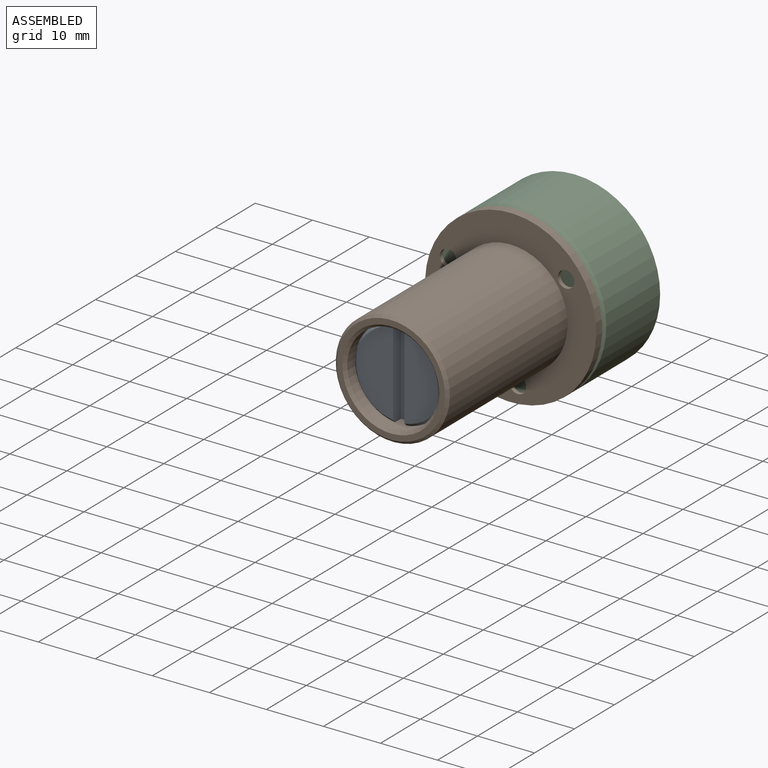
[diagram: assembled view]
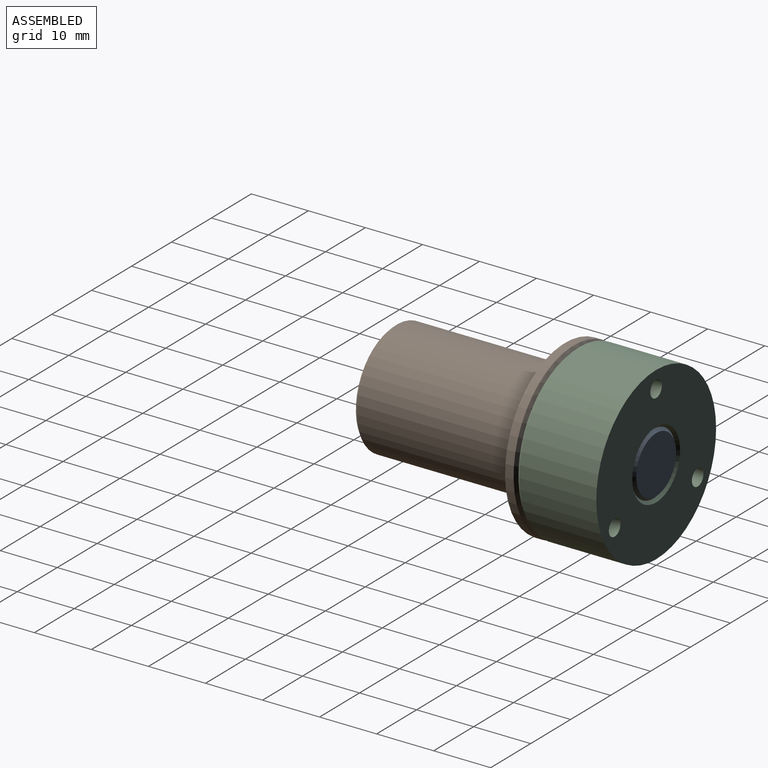
[diagram: assembled view, second angle]
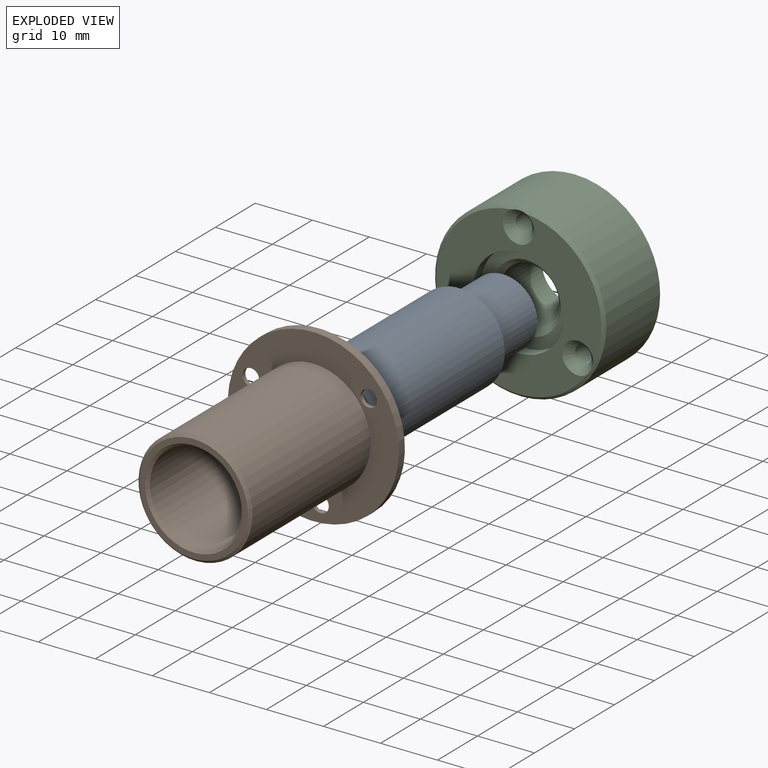
[diagram: exploded view]
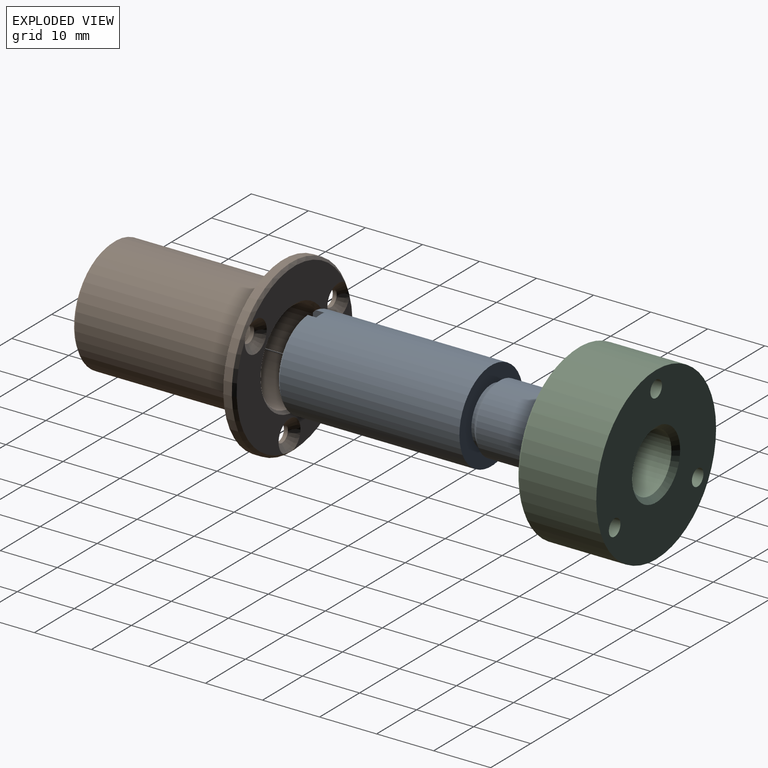
[diagram: exploded view, second angle]
ASSEMBLY  parts=3 mates=2
PART A: 14 faces, bbox 16x44x16 mm
  f0: plane 14.87x6.5mm, normal (0,1,0), area 73.4mm2, adj f1,f11
  f1: cone r=8mm half-angle=45deg, axis (0,-1,0), area 15.8mm2, adj f0,f3,f11
  f2: plane 16x16mm, normal (0,-1,0), area 122.5mm2, adj f3,f6
  f3: cylinder r=8mm len=31.5mm, axis (0,-1,0), area 1577.3mm2, adj f1,f2,f5,f11,f12,f13
  f4: plane 14.87x6.5mm, normal (0,1,0), area 73.4mm2, adj f5,f12
  f5: cone r=8mm half-angle=45deg, axis (0,-1,0), area 15.8mm2, adj f3,f4,f12
  f6: cylinder r=5mm len=10mm, axis (0,-1,0), area 15.7mm2, adj f2,f7
  f7: cone r=5mm half-angle=45deg, axis (0,-1,0), area 48.9mm2, adj f6,f10
  f8: plane 10x10mm, normal (0,-1,0), area 78.5mm2, adj f9
  f9: cone r=5mm half-angle=45deg, axis (0,1,0), area 48.9mm2, adj f8,f10
  f10: cylinder r=6mm len=12mm, axis (0,1,0), area 358.1mm2, adj f7,f9
  f11: plane 15.88x2mm, normal (1,0,0), area 31.5mm2, adj f0,f1,f3,f13
  f12: plane 15.88x2mm, normal (-1,0,0), area 31.5mm2, adj f3,f4,f5,f13
  f13: plane 16x2mm, normal (0,1,0), area 31.9mm2, adj f3,f11,f12
PART B: 16 faces, bbox 30x30x32 mm
  f0: plane 30x30mm, normal (0,0,-1), area 372.9mm2, adj f2,f5,f10,f12,f14
  f1: plane 29x28.95mm, normal (0,0,1), area 363.5mm2, adj f8,f9,f11,f13,f15
  f2: cylinder r=15mm len=30mm, axis (0,0,-1), area 141.4mm2, adj f0,f9
  f3: cylinder r=8mm len=31mm, axis (0,0,-1), area 1558.2mm2, adj f7,f8
  f4: plane 19x19mm, normal (0,0,-1), area 56.5mm2, adj f6,f7
  f5: cylinder r=10mm len=29.5mm, axis (0,0,1), area 1853.5mm2, adj f0,f6
  f6: cone r=9.5mm half-angle=45deg, axis (0,0,1), area 43.3mm2, adj f4,f5
  f7: cone r=8mm half-angle=45deg, axis (0,0,-1), area 36.7mm2, adj f3,f4
  f8: cone r=8mm half-angle=45deg, axis (0,0,1), area 36.7mm2, adj f1,f3
  f9: cone r=14.5mm half-angle=45deg, axis (0,0,-1), area 64.6mm2, adj f1,f2,f11,f13,f15
  f10: cylinder r=1.45mm len=2.9mm, axis (0,0,1), area 6.4mm2, adj f0,f11
  f11: cone r=2.75mm half-angle=45deg, axis (0,0,1), area 24mm2, adj f1,f9,f10
  f12: cylinder r=1.45mm len=2.9mm, axis (0,0,1), area 6.4mm2, adj f0,f13
  f13: cone r=2.75mm half-angle=45deg, axis (0,0,1), area 24mm2, adj f1,f9,f12
  f14: cylinder r=1.45mm len=2.9mm, axis (0,0,1), area 6.4mm2, adj f0,f15
  f15: cone r=2.75mm half-angle=45deg, axis (0,0,1), area 24mm2, adj f1,f9,f14
PART C: 15 faces, bbox 30x14x30 mm
  f0: cylinder r=15mm len=30mm, axis (0,1,0), area 1272.3mm2, adj f2,f14
  f1: plane 29x28.95mm, normal (0,-1,0), area 389.5mm2, adj f3,f9,f11,f13,f14
  f2: plane 30x30mm, normal (0,1,0), area 573.9mm2, adj f0,f5,f8,f10,f12
  f3: cylinder r=8mm len=16mm, axis (0,-1,0), area 100.5mm2, adj f1,f4
  f4: plane 16x16mm, normal (0,-1,0), area 88mm2, adj f3,f7
  f5: cone r=5.1mm half-angle=45deg, axis (0,1,0), area 44.4mm2, adj f2,f6
  f6: cylinder r=5.1mm len=10.2mm, axis (0,-1,0), area 326.9mm2, adj f5,f7
  f7: cone r=6mm half-angle=45deg, axis (0,-1,0), area 44.4mm2, adj f4,f6
  f8: cylinder r=1.45mm len=12.7mm, axis (0,-1,0), area 115.7mm2, adj f2,f9
  f9: cone r=2.75mm half-angle=45deg, axis (0,-1,0), area 24mm2, adj f1,f8,f14
  f10: cylinder r=1.45mm len=12.7mm, axis (0,-1,0), area 115.7mm2, adj f2,f11
  f11: cone r=2.75mm half-angle=45deg, axis (0,-1,0), area 24mm2, adj f1,f10,f14
  f12: cylinder r=1.45mm len=12.7mm, axis (0,-1,0), area 115.7mm2, adj f2,f13
  f13: cone r=2.75mm half-angle=45deg, axis (0,-1,0), area 24mm2, adj f1,f12,f14
  f14: cone r=14.5mm half-angle=45deg, axis (0,1,0), area 64.6mm2, adj f0,f1,f9,f11,f13
PLACE A rot(axis=(1,0,0),180deg) t=(0,-12,0)mm
PLACE B rot(axis=(-1,-0.05,-0.05),90.2deg) t=(0,-16,0)mm
PLACE C at identity fixed
MATE revolute B.f2 <-> C.f0  axis (0,1,0) through (0,-14,0)mm
MATE fastened A.f1 <-> C.f0  axis (0,1,0) through (0,-12,0)mm
